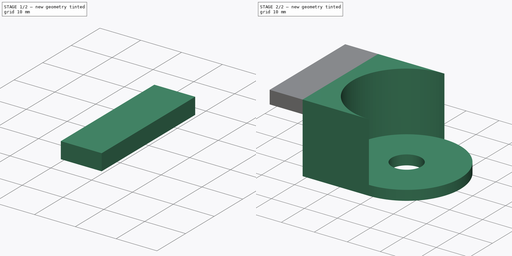
[diagram: build sequence overview — one tinted view per stage of 2, left to right]
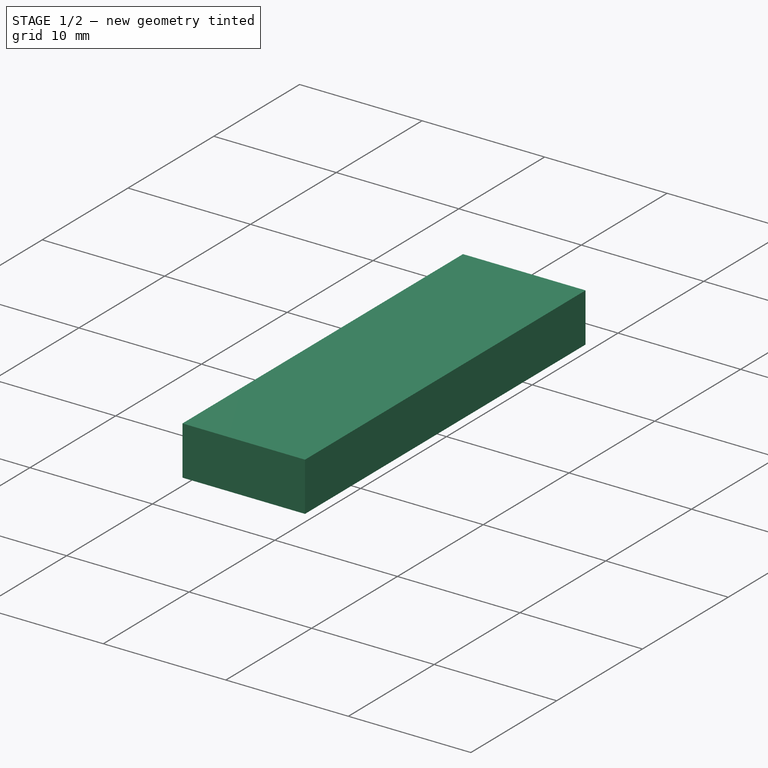
[diagram: stage 1 of 2 — iso view after this stage's code; geometry added in this stage tinted green]
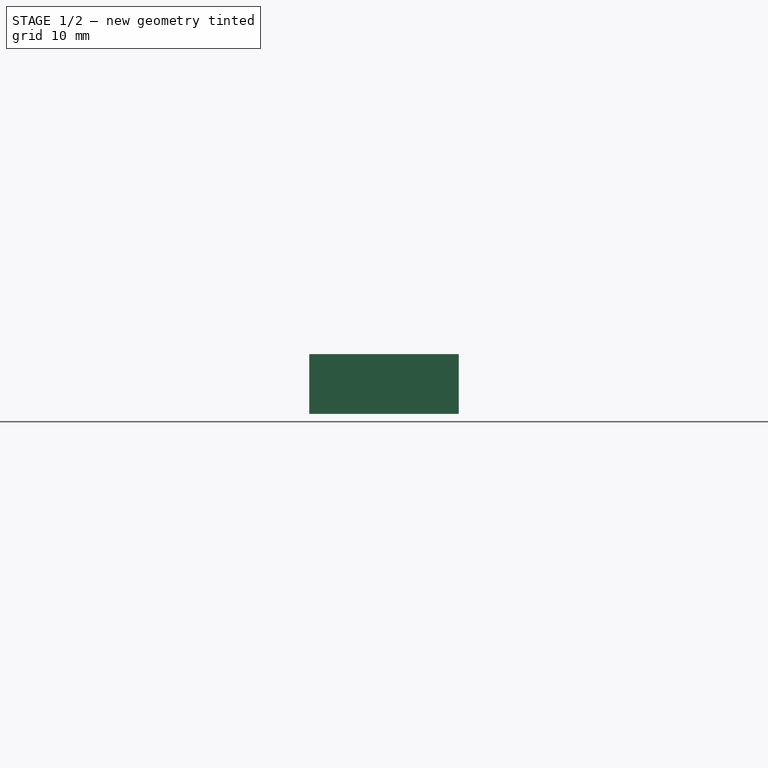
[diagram: stage 1 of 2 — front view after this stage's code; geometry added in this stage tinted green]
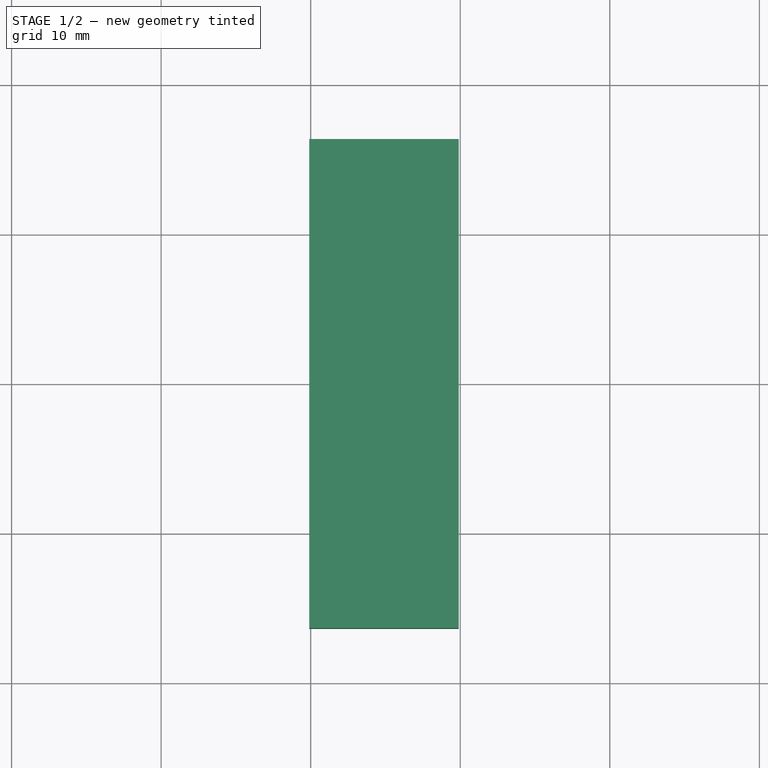
[diagram: stage 1 of 2 — top view after this stage's code; geometry added in this stage tinted green]
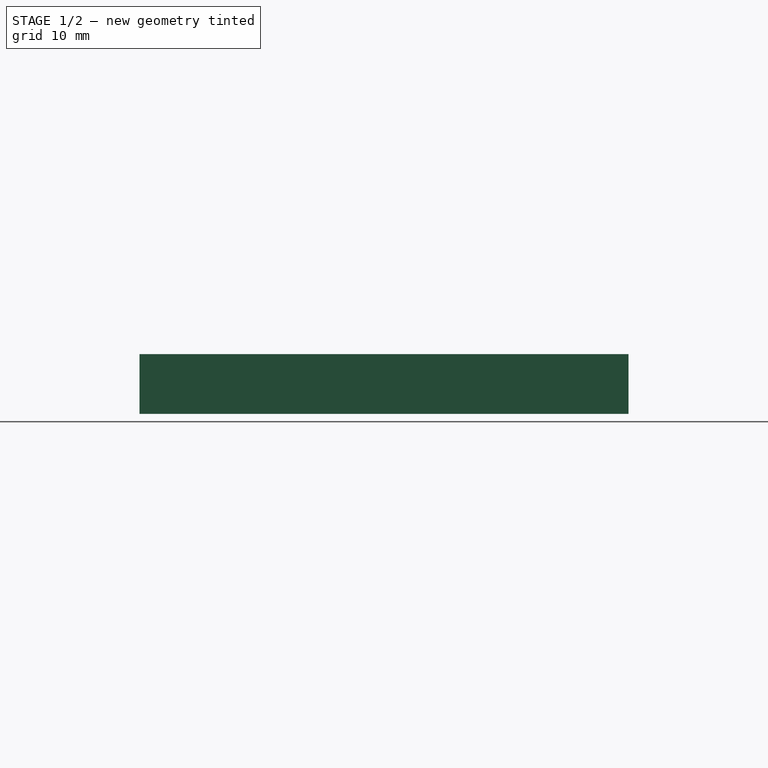
[diagram: stage 1 of 2 — right view after this stage's code; geometry added in this stage tinted green]
FCSTD DOCUMENT  (FreeCAD 0.18R4 (GitTag))
Label: Tapa con soporte para Potenciometro
License: All rights reserved
LicenseURL: http://en.wikipedia.org/wiki/All_rights_reserved
objects: PartDesign::Pad×3, Sketcher::SketchObject×3, PartDesign::Body×2, PartDesign::ShapeBinder×1
note: 12 computed .brp shape members not serialized (recipe doc carries the construction recipe); baked Part::Feature solids carry a one-line shape summary decoded from their .brp

FEATURE [PartDesign::Body] Body001
  Group = -> [Pad,Sketch004,Pad001]
  Origin = -> Origin001
  Tip = -> Pad001
FEATURE [PartDesign::ShapeBinder] CopyPad001
  TraceSupport = false
FEATURE [Sketcher::SketchObject] Sketch
  MapMode = 5
  Support = -> [XY_Plane]
FEATURE [Sketcher::SketchObject] Sketch005
  ExternalGeometry = -> [CopyPad001]
  MapMode = 5
  Placement = pos=(-20.0982,0,0) rot=(0.57735,-0.57735,-0.57735;2.0944rad)
  Support = -> [CopyPad001]
  sketch-geometry (4):
    g0: LineSegment StartX=-16.35 StartY=21 StartZ=0 EndX=16.35 EndY=21 EndZ=0
    g1: LineSegment StartX=16.35 StartY=21 StartZ=0 EndX=16.35 EndY=17 EndZ=0
    g2: LineSegment StartX=16.35 StartY=17 StartZ=0 EndX=-16.35 EndY=17 EndZ=0
    g3: LineSegment StartX=-16.35 StartY=17 StartZ=0 EndX=-16.35 EndY=21 EndZ=0
  constraints (10):
    c: Coincident(g0,g1)
    c: Coincident(g1,g2)
    c: Coincident(g2,g3)
    c: Coincident(g3,g0)
    c: Horizontal(g2)
    c: Vertical(g1)
    c: Vertical(g3)
    c: Coincident(g0,g-4)
    c: DistanceY(g1,g1) = 4
    c: Coincident(g0,g-3)
FEATURE [PartDesign::Pad] Pad002
  Length = 10
  Length2 = 100
  Profile = -> Sketch005
  Type = 0
FEATURE [PartDesign::Body] Body
  Group = -> [CopyPad001,Sketch,Sketch005,Pad002]
  Origin = -> Origin
  Tip = -> Pad002
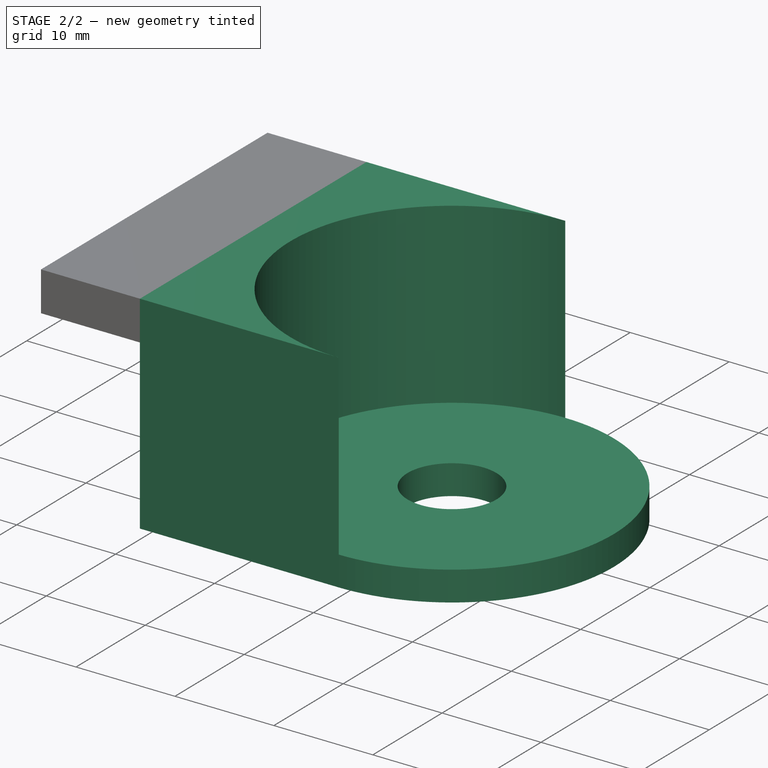
[diagram: stage 2 of 2 — iso view after this stage's code; geometry added in this stage tinted green]
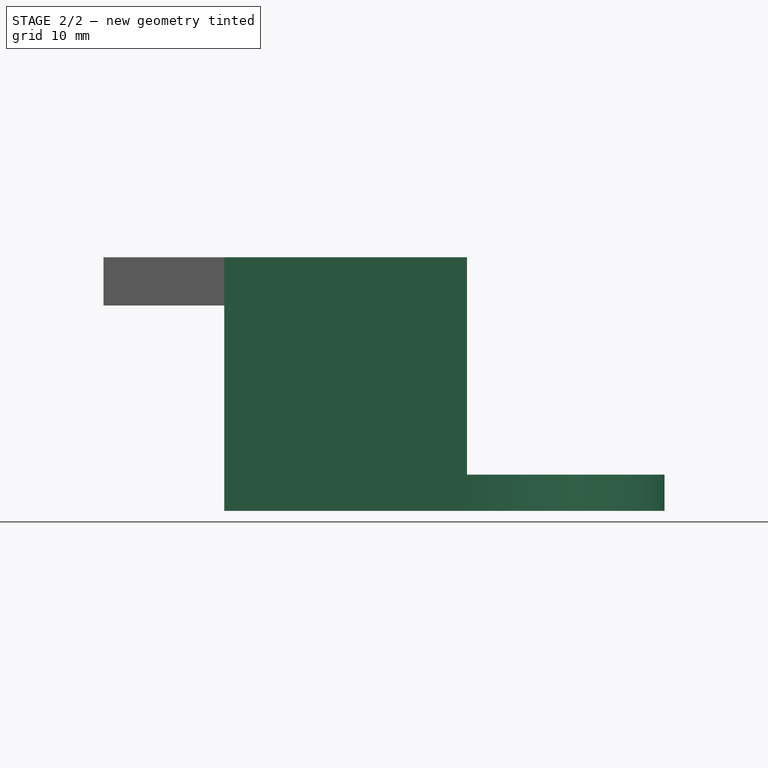
[diagram: stage 2 of 2 — front view after this stage's code; geometry added in this stage tinted green]
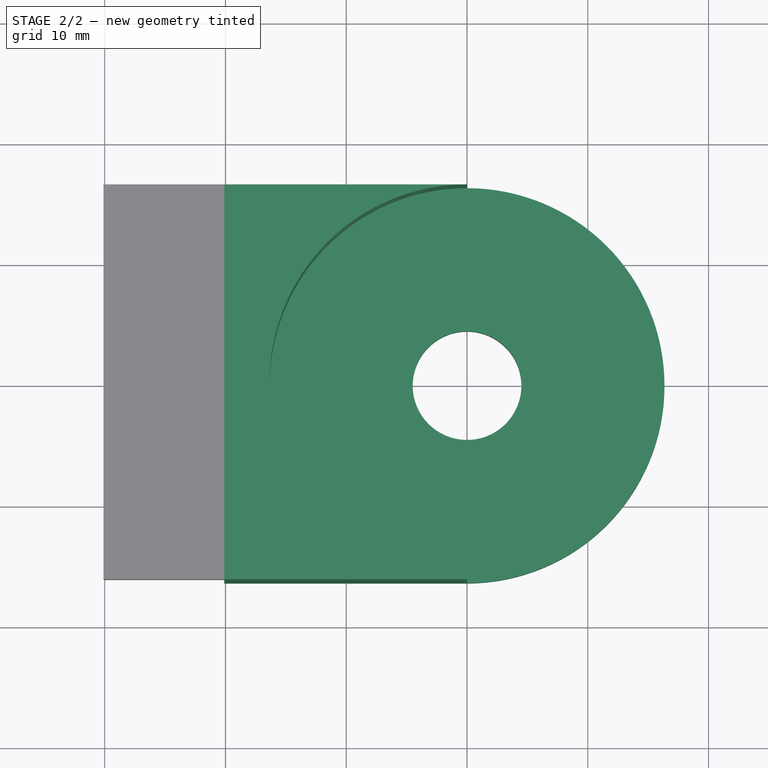
[diagram: stage 2 of 2 — top view after this stage's code; geometry added in this stage tinted green]
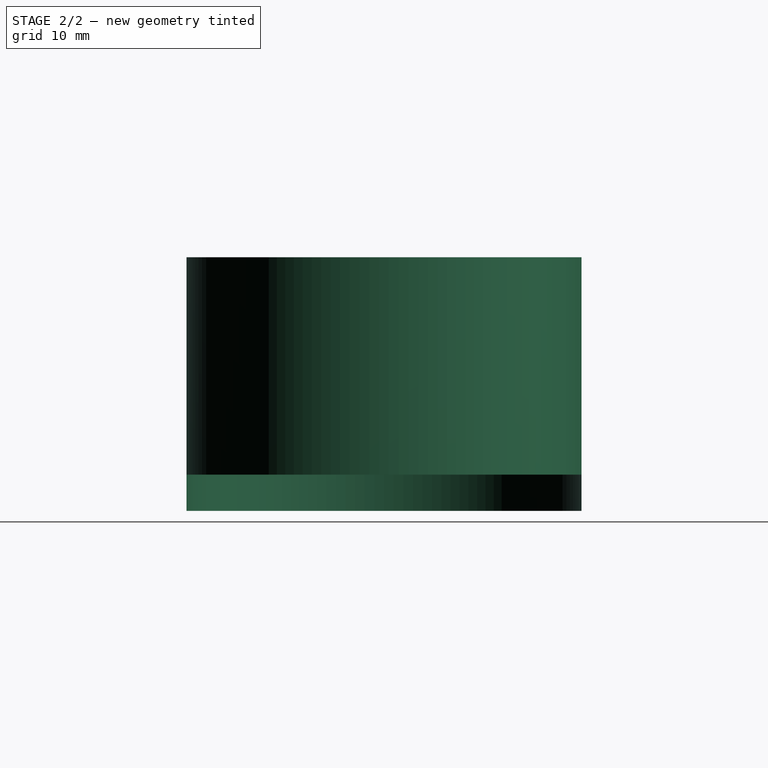
[diagram: stage 2 of 2 — right view after this stage's code; geometry added in this stage tinted green]
FEATURE [PartDesign::Pad] Pad
  Length = 3
  Length2 = 100
  Type = 0
FEATURE [Sketcher::SketchObject] Sketch004
  ExternalGeometry = -> [Pad]
  MapMode = 2
  Placement = pos=(0,0,0) rot=(1,0,0;3.14159rad)
  Support = -> [Sketch004]
  sketch-geometry (4):
    g0: LineSegment StartX=-20.0982 StartY=16.35 StartZ=0 EndX=5.55609e-08 EndY=16.35 EndZ=0
    g1: LineSegment StartX=5.55609e-08 StartY=-16.35 StartZ=0 EndX=-20.0982 EndY=-16.35 EndZ=0
    g2: LineSegment StartX=-20.0982 StartY=-16.35 StartZ=0 EndX=-20.0982 EndY=16.35 EndZ=0
    g3: ArcOfCircle CenterX=-5.36772e-09 CenterY=2e-16 CenterZ=0 NormalX=0 NormalY=0 NormalZ=1 AngleXU=0 Radius=16.35 StartAngle=1.5708 EndAngle=4.71239
  constraints (8):
    c: Coincident(g1,g2)
    c: Coincident(g2,g0)
    c: Horizontal(g0)
    c: Horizontal(g1)
    c: Vertical(g2)
    c: PointOnObject(g1,g-3)
    c: PointOnObject(g1,g3)
    c: Coincident(g3,g0)
FEATURE [PartDesign::Pad] Pad001
  BaseFeature = -> Pad
  Length = 21
  Length2 = 100
  Profile = -> Sketch004
  Reversed = true
  Type = 0
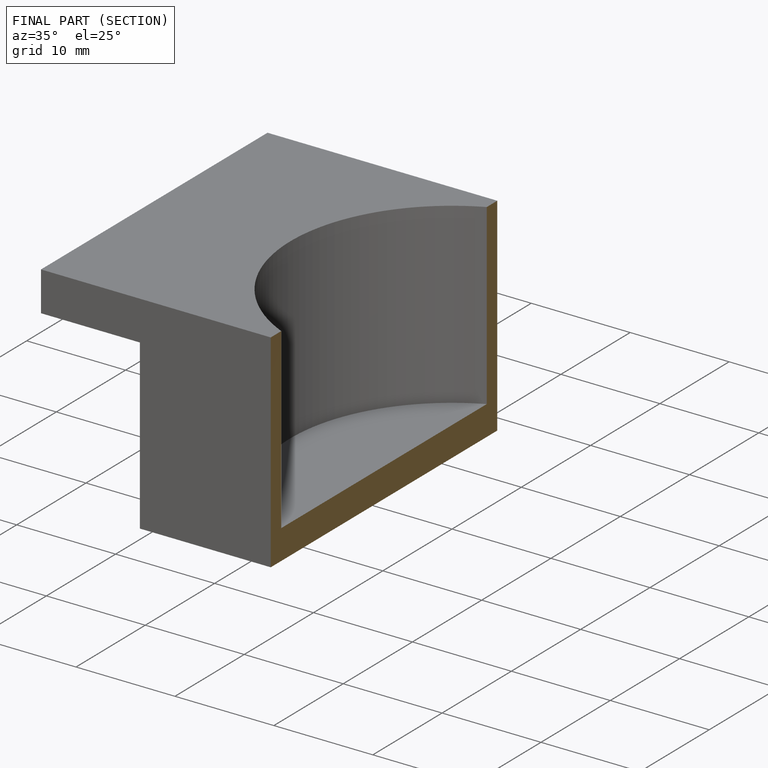
[diagram: finished part — half-section view (interior)]
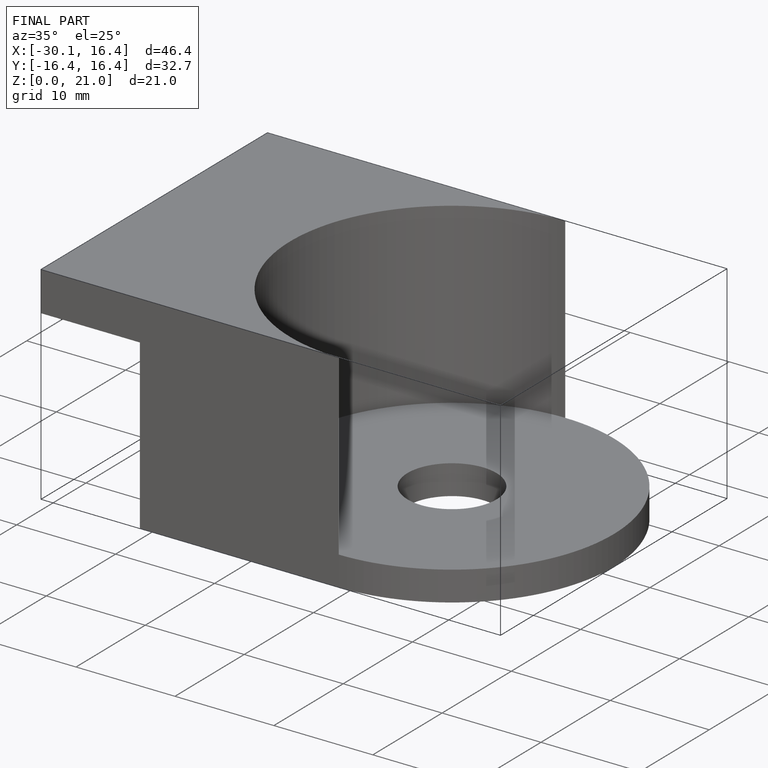
[diagram: finished part — iso view with bounding-box wireframe]
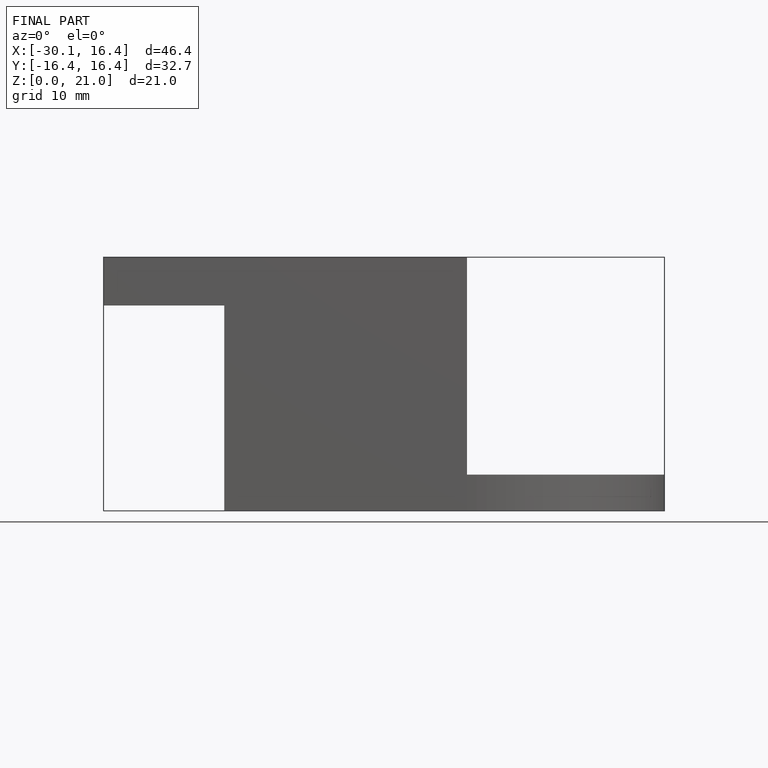
[diagram: finished part — front view with bounding-box wireframe]
